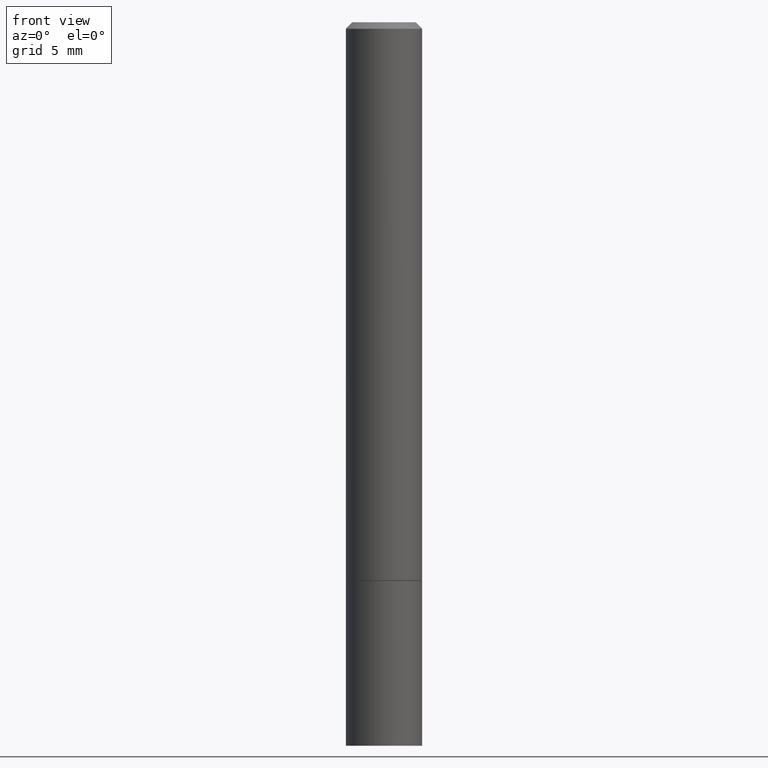
[diagram: clean part render]
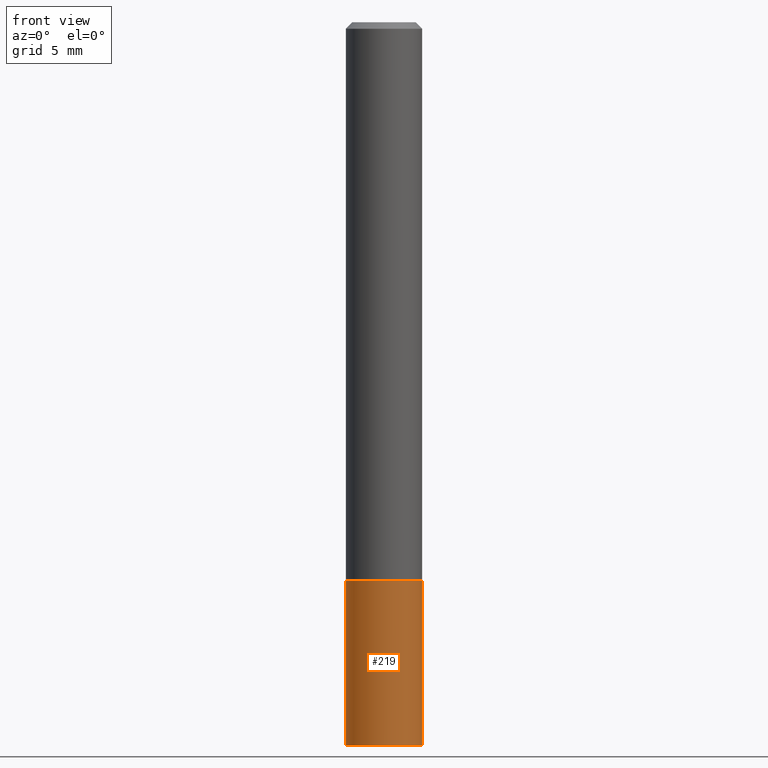
[diagram: same view with one face highlighted and labeled with its STEP entity id]
A machine part, front view. The second image highlights one B-rep face of the part: STEP entity #219.
In plain terms, the highlighted cylindrical surface (partial cylindrical patch) has radius 2.9997 mm, axis along (-0, 0, 1).
Its self-contained STEP definition (entity closure, byte-faithful):
#3 = CARTESIAN_POINT ( 'NONE',  ( 0.1181000000000000383, -8.659921164732650602E-15, -2.244099999999999984 ) ) ;
#23 = CARTESIAN_POINT ( 'NONE',  ( 5.487876547960064752E-29, -7.835233272497902340E-15, -2.244099999999999984 ) ) ;
#24 = ORIENTED_EDGE ( 'NONE', *, *, #229, .T. ) ;
#28 = AXIS2_PLACEMENT_3D ( 'NONE', #212, #216, #83 ) ;
#33 = ORIENTED_EDGE ( 'NONE', *, *, #84, .F. ) ;
#38 = CARTESIAN_POINT ( 'NONE',  ( 0.1181000000000000383, -8.246878922347483612E-16, 5.758764772215001842E-30 ) ) ;
#42 = ORIENTED_EDGE ( 'NONE', *, *, #223, .F. ) ;
#46 = DIRECTION ( 'NONE',  ( -2.445468806185136597E-29, 3.491481338843145583E-15, 1.000000000000000000 ) ) ;
#48 = VERTEX_POINT ( 'NONE', #317 ) ;
#49 = DIRECTION ( 'NONE',  ( -2.445468806185136877E-29, 3.491481338843145188E-15, 1.000000000000000000 ) ) ;
#55 = EDGE_CURVE ( 'NONE', #346, #181, #207, .T. ) ;
#83 = DIRECTION ( 'NONE',  ( 1.000000000000000000, -6.982962677686266711E-15, 4.876176775795935793E-29 ) ) ;
#84 = EDGE_CURVE ( 'NONE', #48, #181, #202, .T. ) ;
#94 = AXIS2_PLACEMENT_3D ( 'NONE', #23, #303, #131 ) ;
#131 = DIRECTION ( 'NONE',  ( 1.000000000000000000, -6.982962677686270655E-15, 0.000000000000000000 ) ) ;
#133 = VERTEX_POINT ( 'NONE', #327 ) ;
#144 = DIRECTION ( 'NONE',  ( -2.445468806185136877E-29, 3.491481338843145188E-15, 1.000000000000000000 ) ) ;
#151 = AXIS2_PLACEMENT_3D ( 'NONE', #354, #46, #154 ) ;
#154 = DIRECTION ( 'NONE',  ( 1.000000000000000000, -6.982962677686262766E-15, 0.000000000000000000 ) ) ;
#158 = ORIENTED_EDGE ( 'NONE', *, *, #55, .T. ) ;
#165 = VECTOR ( 'NONE', #49, 39.37007874015748143 ) ;
#177 = VECTOR ( 'NONE', #144, 39.37007874015748143 ) ;
#181 = VERTEX_POINT ( 'NONE', #275 ) ;
#183 = CARTESIAN_POINT ( 'NONE',  ( -0.1181000000000000383, 8.391509709326785915E-16, -5.809262341591045886E-30 ) ) ;
#184 = CYLINDRICAL_SURFACE ( 'NONE', #28, 0.1181000000000000383 ) ;
#202 = CIRCLE ( 'NONE', #151, 0.1181000000000000383 ) ;
#207 = LINE ( 'NONE', #38, #177 ) ;
#212 = CARTESIAN_POINT ( 'NONE',  ( 0.000000000000000000, 0.000000000000000000, 0.000000000000000000 ) ) ;
#216 = DIRECTION ( 'NONE',  ( -2.445468806185136597E-29, 3.491481338843145583E-15, 1.000000000000000000 ) ) ;
#219 = ADVANCED_FACE ( 'NONE', ( #363 ), #184, .T. ) ;
#221 = CIRCLE ( 'NONE', #94, 0.1181000000000000383 ) ;
#223 = EDGE_CURVE ( 'NONE', #133, #48, #329, .T. ) ;
#229 = EDGE_CURVE ( 'NONE', #133, #346, #221, .T. ) ;
#230 = EDGE_LOOP ( 'NONE', ( #42, #24, #158, #33 ) ) ;
#275 = CARTESIAN_POINT ( 'NONE',  ( 0.1181000000000000383, -6.872981015512729341E-15, -1.732299999999999951 ) ) ;
#303 = DIRECTION ( 'NONE',  ( -2.445468806185136597E-29, 3.491481338843145583E-15, 1.000000000000000000 ) ) ;
#317 = CARTESIAN_POINT ( 'NONE',  ( -0.1181000000000000383, -6.102612226955263117E-15, -1.732299999999999951 ) ) ;
#327 = CARTESIAN_POINT ( 'NONE',  ( -0.1181000000000000383, -6.102612226955263117E-15, -2.244099999999999984 ) ) ;
#329 = LINE ( 'NONE', #183, #165 ) ;
#346 = VERTEX_POINT ( 'NONE', #3 ) ;
#354 = CARTESIAN_POINT ( 'NONE',  ( 4.236285612954512392E-29, -6.048293123277981078E-15, -1.732299999999999951 ) ) ;
#363 = FACE_OUTER_BOUND ( 'NONE', #230, .T. ) ;